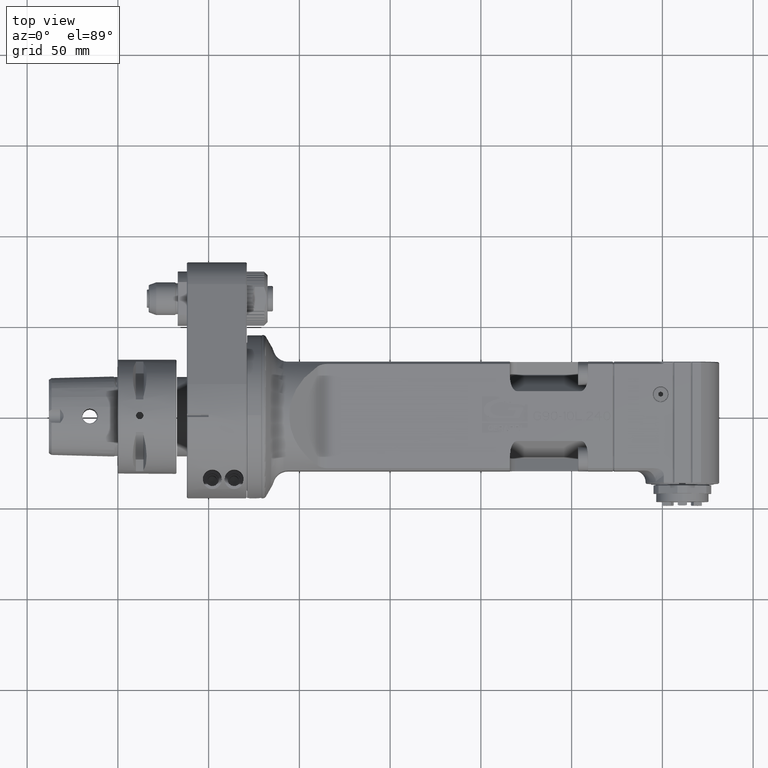
[diagram: clean part render]
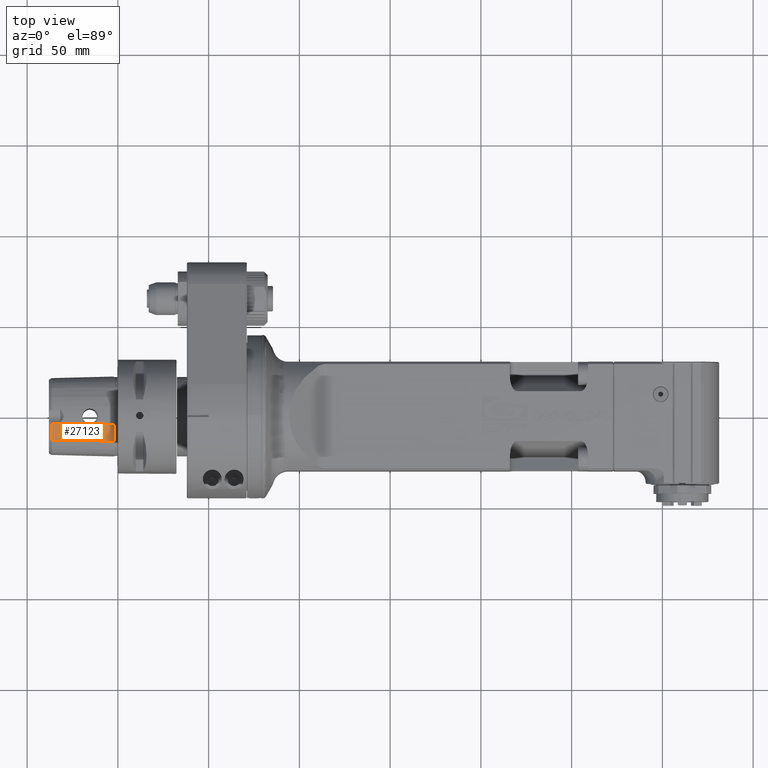
[diagram: same view with one face highlighted and labeled with its STEP entity id]
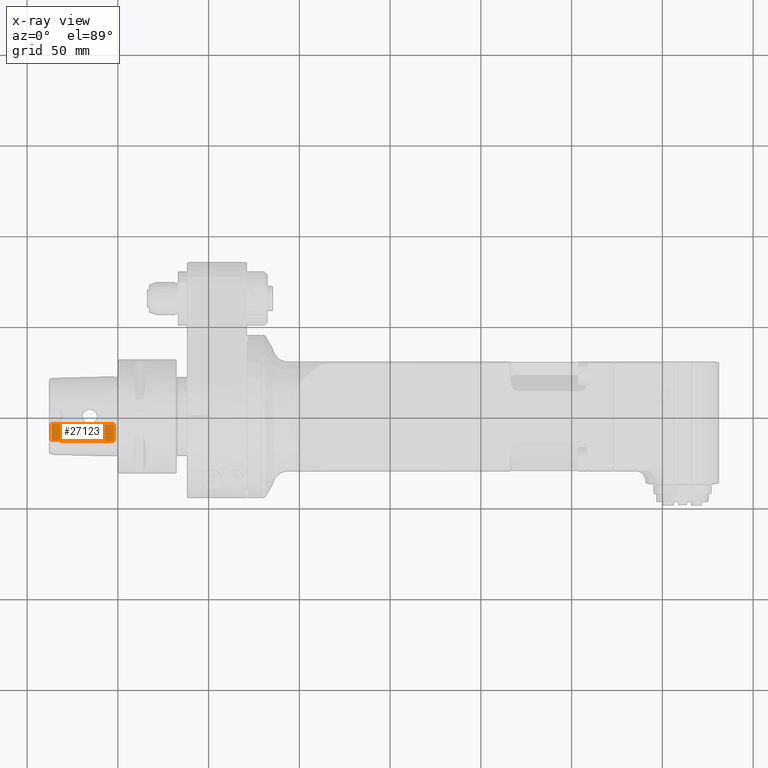
[diagram: x-ray of the same camera — body ghosted, the highlighted face saturated]
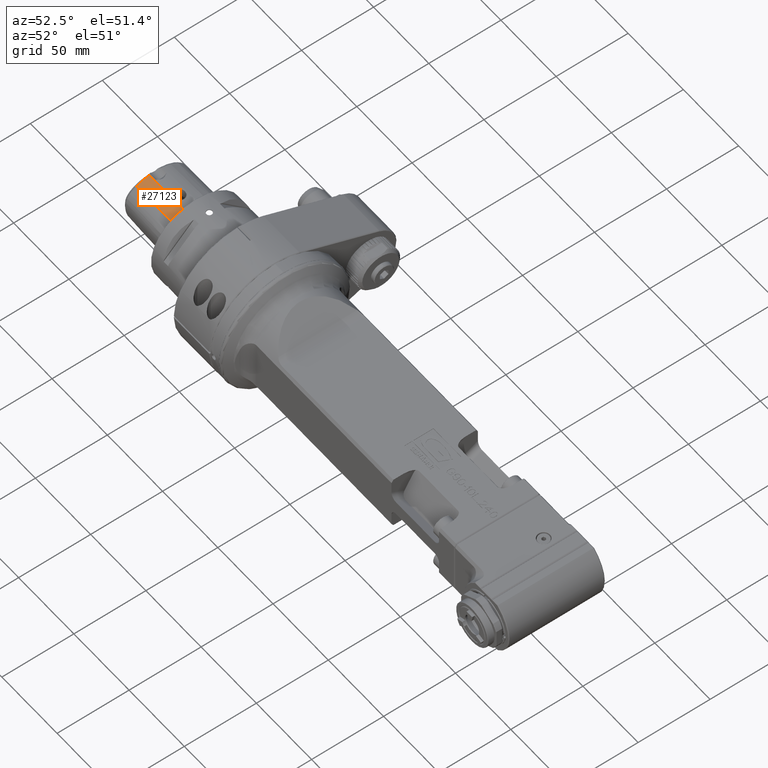
[diagram: same view with one face highlighted and labeled with its STEP entity id]
A machine part, top view. The second image highlights one B-rep face of the part: STEP entity #27123.
The next image is the same camera in x-ray: the body ghosted, the highlighted face saturated — about 0% of this face is hidden behind the body in this view.
A second angle (auxiliary view) of the same face is appended — the face is thin or edge-on in the first view.
In plain terms, the highlighted face is a freeform B-spline surface patch.
Its self-contained STEP definition (entity closure, byte-faithful):
#52=B_SPLINE_SURFACE_WITH_KNOTS('',3,3,((#46370,#46371,#46372,#46373),(#46374,
#46375,#46376,#46377),(#46378,#46379,#46380,#46381),(#46382,#46383,#46384,
#46385),(#46386,#46387,#46388,#46389),(#46390,#46391,#46392,#46393),(#46394,
#46395,#46396,#46397),(#46398,#46399,#46400,#46401),(#46402,#46403,#46404,
#46405),(#46406,#46407,#46408,#46409),(#46410,#46411,#46412,#46413),(#46414,
#46415,#46416,#46417),(#46418,#46419,#46420,#46421),(#46422,#46423,#46424,
#46425),(#46426,#46427,#46428,#46429),(#46430,#46431,#46432,#46433),(#46434,
#46435,#46436,#46437),(#46438,#46439,#46440,#46441),(#46442,#46443,#46444,
#46445),(#46446,#46447,#46448,#46449)),.UNSPECIFIED.,.F.,.F.,.F.,(4,1,1,
1,1,1,1,1,1,1,1,1,1,1,1,1,1,4),(4,4),(-8.371709397923E-6,0.003898916833759,
0.007806205376916,0.01562078246323,0.03124993663586,0.04687493351893,0.062499930402,
0.09374992416823,0.1249999179345,0.2499998929994,0.3749998680642,0.4374998555967,
0.4999998675311,0.7499999330394,0.8749999657935,0.9374999820655,1.,1.009963708168),
(2.571646971761E-9,0.999999927877),.UNSPECIFIED.);
#192=B_SPLINE_CURVE_WITH_KNOTS('',3,(#45255,#45256,#45257,#45258,#45259,
#45260,#45261,#45262,#45263,#45264,#45265,#45266,#45267,#45268,#45269,#45270,
#45271,#45272,#45273,#45274,#45275,#45276,#45277,#45278,#45279,#45280,#45281,
#45282,#45283,#45284,#45285,#45286,#45287,#45288,#45289,#45290,#45291,#45292),
 .UNSPECIFIED.,.F.,.F.,(4,2,2,2,2,2,2,2,2,2,2,2,2,2,2,2,2,2,4),(3.35280705434055E-6,
0.00102279651002174,0.00226934675357567,0.00501437294636602,0.00627549503894429,
0.00975802569041714,0.0112835332638371,0.0154982563456054,0.0176474582169624,
0.0266429120168561,0.0332729907973543,0.0421275944564206,0.0539325752234731,
0.101245478639951,0.114732786779396,0.143833495177436,0.187545149784465,
0.209396643594491,0.231308721934816),.UNSPECIFIED.);
#219=B_SPLINE_CURVE_WITH_KNOTS('',3,(#46451,#46452,#46453,#46454,#46455,
#46456,#46457,#46458,#46459,#46460,#46461,#46462,#46463,#46464,#46465,#46466,
#46467,#46468,#46469,#46470,#46471,#46472,#46473,#46474,#46475,#46476,#46477,
#46478),.UNSPECIFIED.,.F.,.F.,(4,2,2,2,2,2,2,2,2,2,2,2,2,4),(4.0261364038379E-6,
0.524078121699186,0.744654926903752,0.855712006654776,0.921309353908501,
0.960413403630422,0.979955636374144,0.988933784134256,0.992309345135935,
0.994890227002748,0.996676988641336,0.997691097568395,0.998555899739404,
0.999611922386064),.UNSPECIFIED.);
#2682=FACE_OUTER_BOUND('',#4273,.T.);
#4273=EDGE_LOOP('',(#19679,#19680,#19681,#19682));
#6188=LINE('',#46369,#8792);
#6189=LINE('',#46479,#8793);
#8792=VECTOR('',#33061,34.3113124986903);
#8793=VECTOR('',#33062,34.3113189461992);
#11450=VERTEX_POINT('',#45203);
#11451=VERTEX_POINT('',#45254);
#11477=VERTEX_POINT('',#46350);
#11478=VERTEX_POINT('',#46450);
#14488=EDGE_CURVE('',#11450,#11451,#192,.T.);
#14524=EDGE_CURVE('',#11450,#11477,#6188,.T.);
#14525=EDGE_CURVE('',#11478,#11477,#219,.T.);
#14526=EDGE_CURVE('',#11451,#11478,#6189,.T.);
#19679=ORIENTED_EDGE('',*,*,#14524,.T.);
#19680=ORIENTED_EDGE('',*,*,#14525,.F.);
#19681=ORIENTED_EDGE('',*,*,#14526,.F.);
#19682=ORIENTED_EDGE('',*,*,#14488,.F.);
#27123=ADVANCED_FACE('',(#2682),#52,.T.);
#33061=DIRECTION('',(0.0223245270359098,-0.999684088063578,0.011547275224725));
#33062=DIRECTION('',(0.0249057787588706,-0.999683876938921,0.00344214653705616));
#45203=CARTESIAN_POINT('',(16.7004047094186,107.500473384047,13.3366669288205));
#45254=CARTESIAN_POINT('',(19.4563465671384,107.500325987944,4.40153057900576));
#45255=CARTESIAN_POINT('Ctrl Pts',(16.7003706478579,107.500516452775,13.3366762599661));
#45256=CARTESIAN_POINT('Ctrl Pts',(16.7014460529686,107.501303570415,13.3335501502976));
#45257=CARTESIAN_POINT('Ctrl Pts',(16.7026465556883,107.501928383991,13.3303966913055));
#45258=CARTESIAN_POINT('Ctrl Pts',(16.7056650131093,107.502730626851,13.3234875747337));
#45259=CARTESIAN_POINT('Ctrl Pts',(16.7072986264753,107.502711358819,13.3203499257624));
#45260=CARTESIAN_POINT('Ctrl Pts',(16.7124427063162,107.501965623867,13.3113787736777));
#45261=CARTESIAN_POINT('Ctrl Pts',(16.7151501696262,107.500512686961,13.3080692593592));
#45262=CARTESIAN_POINT('Ctrl Pts',(16.7223210920362,107.499801156061,13.2950974564786));
#45263=CARTESIAN_POINT('Ctrl Pts',(16.724564906923,107.499831842312,13.2906971069143));
#45264=CARTESIAN_POINT('Ctrl Pts',(16.7322790103771,107.500227843068,13.2751700192643));
#45265=CARTESIAN_POINT('Ctrl Pts',(16.7365731734381,107.501086503293,13.2656957750121));
#45266=CARTESIAN_POINT('Ctrl Pts',(16.7577548449524,107.500779574025,13.2246976928936));
#45267=CARTESIAN_POINT('Ctrl Pts',(16.7630790022939,107.500538413846,13.2145988633386));
#45268=CARTESIAN_POINT('Ctrl Pts',(16.7948506787782,107.499906375739,13.1530599065805));
#45269=CARTESIAN_POINT('Ctrl Pts',(16.8114865906181,107.50040018742,13.1195850139067));
#45270=CARTESIAN_POINT('Ctrl Pts',(16.8572960536117,107.500582024026,13.0279128342539));
#45271=CARTESIAN_POINT('Ctrl Pts',(16.8726572315836,107.500534606947,12.9971513012714));
#45272=CARTESIAN_POINT('Ctrl Pts',(16.952126048915,107.500332200092,12.8370817462919));
#45273=CARTESIAN_POINT('Ctrl Pts',(17.0152983573824,107.500495528848,12.7061982647109));
#45274=CARTESIAN_POINT('Ctrl Pts',(17.1088451539165,107.500463117233,12.5089896653593));
#45275=CARTESIAN_POINT('Ctrl Pts',(17.1479064957737,107.500457568354,12.4253913300868));
#45276=CARTESIAN_POINT('Ctrl Pts',(17.2379315730721,107.500479374299,12.2298409519226));
#45277=CARTESIAN_POINT('Ctrl Pts',(17.2886185294034,107.50049565088,12.1175139008346));
#45278=CARTESIAN_POINT('Ctrl Pts',(17.4049678888443,107.500502108788,11.8544611002858));
#45279=CARTESIAN_POINT('Ctrl Pts',(17.4699575211192,107.500492797652,11.703491095491));
#45280=CARTESIAN_POINT('Ctrl Pts',(17.7880240161471,107.50045317722,10.9443551422097));
#45281=CARTESIAN_POINT('Ctrl Pts',(18.0182258622131,107.500470475681,10.3285823155142));
#45282=CARTESIAN_POINT('Ctrl Pts',(18.2866867559513,107.500476024924,9.5238635802917));
#45283=CARTESIAN_POINT('Ctrl Pts',(18.3446051863445,107.500437612108,9.34423108587127));
#45284=CARTESIAN_POINT('Ctrl Pts',(18.5215607142492,107.500456989672,8.77591326112595));
#45285=CARTESIAN_POINT('Ctrl Pts',(18.6339520990554,107.500633121456,8.38520490813656));
#45286=CARTESIAN_POINT('Ctrl Pts',(18.8943500378528,107.500623192638,7.40240449779628));
#45287=CARTESIAN_POINT('Ctrl Pts',(19.0318391532281,107.500422083737,6.80804231087082));
#45288=CARTESIAN_POINT('Ctrl Pts',(19.2111706476033,107.500463857369,5.90933483613893));
#45289=CARTESIAN_POINT('Ctrl Pts',(19.2664528160042,107.500469770138,5.60861574124452));
#45290=CARTESIAN_POINT('Ctrl Pts',(19.3680939635115,107.500469402265,5.00579970019409));
#45291=CARTESIAN_POINT('Ctrl Pts',(19.4143388236849,107.500483414273,4.70415353103536));
#45292=CARTESIAN_POINT('Ctrl Pts',(19.4563250200575,107.500474730825,4.40160475555364));
#46350=CARTESIAN_POINT('',(17.466387891426,73.2000004052995,13.7328695153045));
#46369=CARTESIAN_POINT('',(16.7004047140324,107.500473177444,13.336666931207));
#46370=CARTESIAN_POINT('Ctrl Pts',(17.4816634295024,72.5139903325146,13.7408773239043));
#46371=CARTESIAN_POINT('Ctrl Pts',(17.2161171753624,84.4048497304645,13.6035259756416));
#46372=CARTESIAN_POINT('Ctrl Pts',(16.9505709212224,96.2957091284144,13.466174627389));
#46373=CARTESIAN_POINT('Ctrl Pts',(16.6850246670824,108.186568526354,13.3288232791263));
#46374=CARTESIAN_POINT('Ctrl Pts',(17.4737203801024,72.5149557156246,13.7217188820143));
#46375=CARTESIAN_POINT('Ctrl Pts',(17.2130168208324,84.3980797569645,13.5853156650116));
#46376=CARTESIAN_POINT('Ctrl Pts',(16.9523132615624,96.2812037982943,13.448912448009));
#46377=CARTESIAN_POINT('Ctrl Pts',(16.6916097022924,108.164327839624,13.3125092310163));
#46378=CARTESIAN_POINT('Ctrl Pts',(17.5052889926524,72.5135546408746,13.7107915609643));
#46379=CARTESIAN_POINT('Ctrl Pts',(17.2373054149324,84.4078660611445,13.5734999647116));
#46380=CARTESIAN_POINT('Ctrl Pts',(16.9693218372124,96.3021774814243,13.436208368469));
#46381=CARTESIAN_POINT('Ctrl Pts',(16.7013382594824,108.196488901694,13.2989167722263));
#46382=CARTESIAN_POINT('Ctrl Pts',(17.5186627289424,72.5142388324046,13.6602559522443));
#46383=CARTESIAN_POINT('Ctrl Pts',(17.2538659655224,84.4030870823444,13.5240971843316));
#46384=CARTESIAN_POINT('Ctrl Pts',(16.9890692021024,96.2919353322843,13.387938416429));
#46385=CARTESIAN_POINT('Ctrl Pts',(16.7242724386824,108.180783582224,13.2517796485163));
#46386=CARTESIAN_POINT('Ctrl Pts',(17.5650332159424,72.5138118170145,13.5850721986443));
#46387=CARTESIAN_POINT('Ctrl Pts',(17.2975569265124,84.4060697229343,13.4495323573916));
#46388=CARTESIAN_POINT('Ctrl Pts',(17.0300806370724,96.2983276288542,13.313992516149));
#46389=CARTESIAN_POINT('Ctrl Pts',(16.7626043476424,108.190585534774,13.1784526748963));
#46390=CARTESIAN_POINT('Ctrl Pts',(17.6186366608724,72.5140510110444,13.4704380857243));
#46391=CARTESIAN_POINT('Ctrl Pts',(17.3516772360224,84.4043989871442,13.3364778860416));
#46392=CARTESIAN_POINT('Ctrl Pts',(17.0847178111824,96.2947469632341,13.202517686349));
#46393=CARTESIAN_POINT('Ctrl Pts',(16.8177583863324,108.185094939324,13.0685574866663));
#46394=CARTESIAN_POINT('Ctrl Pts',(17.6872958614424,72.5139745910142,13.3354590848443));
#46395=CARTESIAN_POINT('Ctrl Pts',(17.4191241341624,84.4049327698641,13.2030845118316));
#46396=CARTESIAN_POINT('Ctrl Pts',(17.1509524068924,96.2958909487139,13.070709938809));
#46397=CARTESIAN_POINT('Ctrl Pts',(16.8827806796124,108.186849127564,12.9383353657963));
#46398=CARTESIAN_POINT('Ctrl Pts',(17.7759078682524,72.513999605344,13.1539165418143));
#46399=CARTESIAN_POINT('Ctrl Pts',(17.5067881297324,84.4047580482739,13.0237543086516));
#46400=CARTESIAN_POINT('Ctrl Pts',(17.2376683912024,96.2955164911938,12.893592075499));
#46401=CARTESIAN_POINT('Ctrl Pts',(16.9685486526824,108.186274934114,12.7634298423463));
#46402=CARTESIAN_POINT('Ctrl Pts',(17.8852043226124,72.5139874944638,12.9263400431143));
#46403=CARTESIAN_POINT('Ctrl Pts',(17.6147202828124,84.4048426408636,12.7988938159616));
#46404=CARTESIAN_POINT('Ctrl Pts',(17.3442362430124,96.2956977872635,12.671447588809));
#46405=CARTESIAN_POINT('Ctrl Pts',(17.0737522032124,108.186552933653,12.5440013616563));
#46406=CARTESIAN_POINT('Ctrl Pts',(18.1403783757824,72.5139941247732,12.3767535664643));
#46407=CARTESIAN_POINT('Ctrl Pts',(17.8669231672524,84.4047963289431,12.2558128807116));
#46408=CARTESIAN_POINT('Ctrl Pts',(17.5934679587224,96.2955985331129,12.134872194959));
#46409=CARTESIAN_POINT('Ctrl Pts',(17.3200127502024,108.186400737283,12.0139315092063));
#46410=CARTESIAN_POINT('Ctrl Pts',(18.4986812731324,72.5139890287523,11.5412324693943));
#46411=CARTESIAN_POINT('Ctrl Pts',(18.2211062351024,84.4048319237122,11.4298755045716));
#46412=CARTESIAN_POINT('Ctrl Pts',(17.9435311970724,96.2956748186621,11.318518539739));
#46413=CARTESIAN_POINT('Ctrl Pts',(17.6659561590424,108.186517713622,11.2071615749163));
#46414=CARTESIAN_POINT('Ctrl Pts',(18.8541097315724,72.5139906836413,10.5955833087743));
#46415=CARTESIAN_POINT('Ctrl Pts',(18.5726288899824,84.4048203643712,10.4945895634716));
#46416=CARTESIAN_POINT('Ctrl Pts',(18.2911480483924,96.2956500451111,10.393595818159));
#46417=CARTESIAN_POINT('Ctrl Pts',(18.0096672068024,108.186479725841,10.2926020728563));
#46418=CARTESIAN_POINT('Ctrl Pts',(19.1136876460124,72.5139904906705,9.83041582510631));
#46419=CARTESIAN_POINT('Ctrl Pts',(18.8294355635524,84.4048217118704,9.73750361687864));
#46420=CARTESIAN_POINT('Ctrl Pts',(18.5451834811024,96.2956529330603,9.64459140865197));
#46421=CARTESIAN_POINT('Ctrl Pts',(18.2609313986424,108.18648415426,9.5516792004243));
#46422=CARTESIAN_POINT('Ctrl Pts',(19.4786385798424,72.5139905917792,8.67485008293631));
#46423=CARTESIAN_POINT('Ctrl Pts',(19.1906771567024,84.4048210051692,8.59386158051564));
#46424=CARTESIAN_POINT('Ctrl Pts',(18.9027157335624,96.2956514185591,8.51287307809497));
#46425=CARTESIAN_POINT('Ctrl Pts',(18.6147543104224,108.186481831949,8.4318845756753));
#46426=CARTESIAN_POINT('Ctrl Pts',(19.8339203727224,72.5139905412378,7.30548390392231));
#46427=CARTESIAN_POINT('Ctrl Pts',(19.5424468030324,84.4048213582177,7.23815817983664));
#46428=CARTESIAN_POINT('Ctrl Pts',(19.2509732333324,96.2956521752076,7.17083245574997));
#46429=CARTESIAN_POINT('Ctrl Pts',(18.9594996636424,108.186482992188,7.1035067316633));
#46430=CARTESIAN_POINT('Ctrl Pts',(20.1075864350024,72.5139905661763,5.91824701936831));
#46431=CARTESIAN_POINT('Ctrl Pts',(19.8134109735624,84.4048211837263,5.86424729480964));
#46432=CARTESIAN_POINT('Ctrl Pts',(19.5192355121224,96.2956518012762,5.81024757025097));
#46433=CARTESIAN_POINT('Ctrl Pts',(19.2250600506824,108.186482418826,5.7562478456923));
#46434=CARTESIAN_POINT('Ctrl Pts',(20.2410667789224,72.5139905844255,5.12152194641731));
#46435=CARTESIAN_POINT('Ctrl Pts',(19.9456251201924,84.4048210559554,5.07501187110164));
#46436=CARTESIAN_POINT('Ctrl Pts',(19.6501834614524,96.2956515274853,5.02850179578697));
#46437=CARTESIAN_POINT('Ctrl Pts',(19.3547418027224,108.186481999015,4.9819917204723));
#46438=CARTESIAN_POINT('Ctrl Pts',(20.3049622175924,72.513990598065,4.69015213414931));
#46439=CARTESIAN_POINT('Ctrl Pts',(20.0089229475824,84.4048209605049,4.64765557752864));
#46440=CARTESIAN_POINT('Ctrl Pts',(19.7128836775724,96.2956513229449,4.60515902090897));
#46441=CARTESIAN_POINT('Ctrl Pts',(19.4168444075624,108.186481685395,4.5626624642893));
#46442=CARTESIAN_POINT('Ctrl Pts',(20.3367354340924,72.5139905988348,4.45819993561731));
#46443=CARTESIAN_POINT('Ctrl Pts',(20.0404257230924,84.4048209551047,4.41784839628964));
#46444=CARTESIAN_POINT('Ctrl Pts',(19.7441160120924,96.2956513113647,4.37749685696197));
#46445=CARTESIAN_POINT('Ctrl Pts',(19.4478063010924,108.186481667635,4.3371453176343));
#46446=CARTESIAN_POINT('Ctrl Pts',(20.3410563624224,72.5139905987947,4.42630031017831));
#46447=CARTESIAN_POINT('Ctrl Pts',(20.0447104906624,84.4048209553647,4.38624352027064));
#46448=CARTESIAN_POINT('Ctrl Pts',(19.7483646189024,96.2956513119346,4.34618673036397));
#46449=CARTESIAN_POINT('Ctrl Pts',(19.4520187471424,108.186481668505,4.3061299404563));
#46450=CARTESIAN_POINT('',(20.3108893262517,73.2000000140757,4.51962277306424));
#46451=CARTESIAN_POINT('Ctrl Pts',(20.3108594142491,73.1999999999844,4.51961862975636));
#46452=CARTESIAN_POINT('Ctrl Pts',(20.0711714162802,73.1999999999851,6.25001092219496));
#46453=CARTESIAN_POINT('Ctrl Pts',(19.6891903065255,73.200000006179,7.97037818200367));
#46454=CARTESIAN_POINT('Ctrl Pts',(18.9307681889967,73.2000000061801,10.3406518822714));
#46455=CARTESIAN_POINT('Ctrl Pts',(18.6781075523176,73.1999999999873,11.0373201213158));
#46456=CARTESIAN_POINT('Ctrl Pts',(18.2552743664181,73.1999999999878,12.0657834238058));
#46457=CARTESIAN_POINT('Ctrl Pts',(18.1073138710161,73.199999999988,12.4049431421227));
#46458=CARTESIAN_POINT('Ctrl Pts',(17.8629845199258,73.1999999999883,12.9337073442626));
#46459=CARTESIAN_POINT('Ctrl Pts',(17.7836601622819,73.1999999999883,13.0986145974199));
#46460=CARTESIAN_POINT('Ctrl Pts',(17.6751454168547,73.1999999999884,13.3209100591418));
#46461=CARTESIAN_POINT('Ctrl Pts',(17.6329908080953,73.1999999999885,13.4031350248322));
#46462=CARTESIAN_POINT('Ctrl Pts',(17.5725630155712,73.1999999999885,13.5278215522209));
#46463=CARTESIAN_POINT('Ctrl Pts',(17.5542143511763,73.1999999999886,13.565698148777));
#46464=CARTESIAN_POINT('Ctrl Pts',(17.5177370151254,73.1999999999886,13.629475438875));
#46465=CARTESIAN_POINT('Ctrl Pts',(17.506614770478,73.1999999999886,13.649999386068));
#46466=CARTESIAN_POINT('Ctrl Pts',(17.4959339576395,73.1999999999886,13.6799782217676));
#46467=CARTESIAN_POINT('Ctrl Pts',(17.4929481494012,73.1999999999887,13.6881333056375));
#46468=CARTESIAN_POINT('Ctrl Pts',(17.4836222673675,73.1999999999887,13.7001501631076));
#46469=CARTESIAN_POINT('Ctrl Pts',(17.4796510855064,73.1999999999887,13.7027512882444));
#46470=CARTESIAN_POINT('Ctrl Pts',(17.4718129782438,73.1999999999887,13.7089686424953));
#46471=CARTESIAN_POINT('Ctrl Pts',(17.468784427449,73.1999999999887,13.7116331567882));
#46472=CARTESIAN_POINT('Ctrl Pts',(17.465624691187,73.1999999999887,13.7167482790003));
#46473=CARTESIAN_POINT('Ctrl Pts',(17.4648576269139,73.1999999999887,13.7187114601714));
#46474=CARTESIAN_POINT('Ctrl Pts',(17.4642113677902,73.1999999999887,13.7226861690901));
#46475=CARTESIAN_POINT('Ctrl Pts',(17.4642384948572,73.1999999999887,13.7245300523542));
#46476=CARTESIAN_POINT('Ctrl Pts',(17.4648199366483,73.1999999999887,13.728600160193));
#46477=CARTESIAN_POINT('Ctrl Pts',(17.4654892343468,73.1999999999887,13.7308138051604));
#46478=CARTESIAN_POINT('Ctrl Pts',(17.4663262353382,73.1999999999887,13.7329100961486));
#46479=CARTESIAN_POINT('',(19.4563377550324,107.500473109495,4.40151726797203));